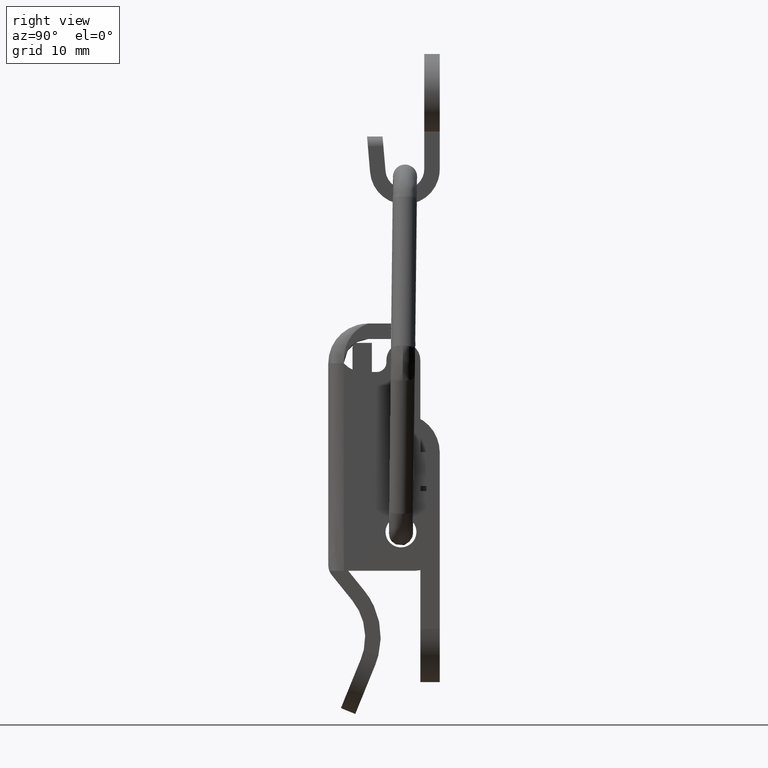
[diagram: clean part render]
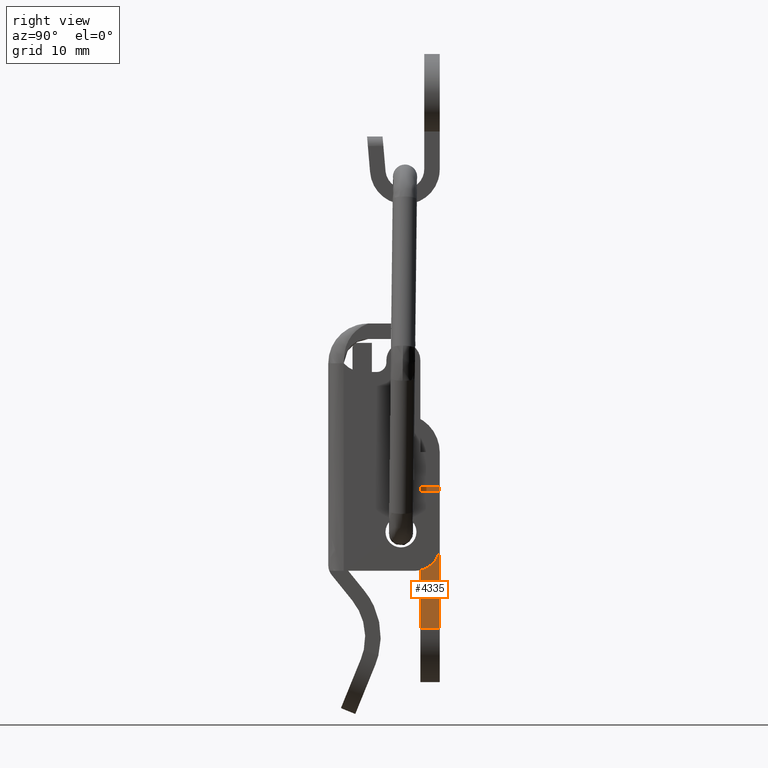
[diagram: same view with one face highlighted and labeled with its STEP entity id]
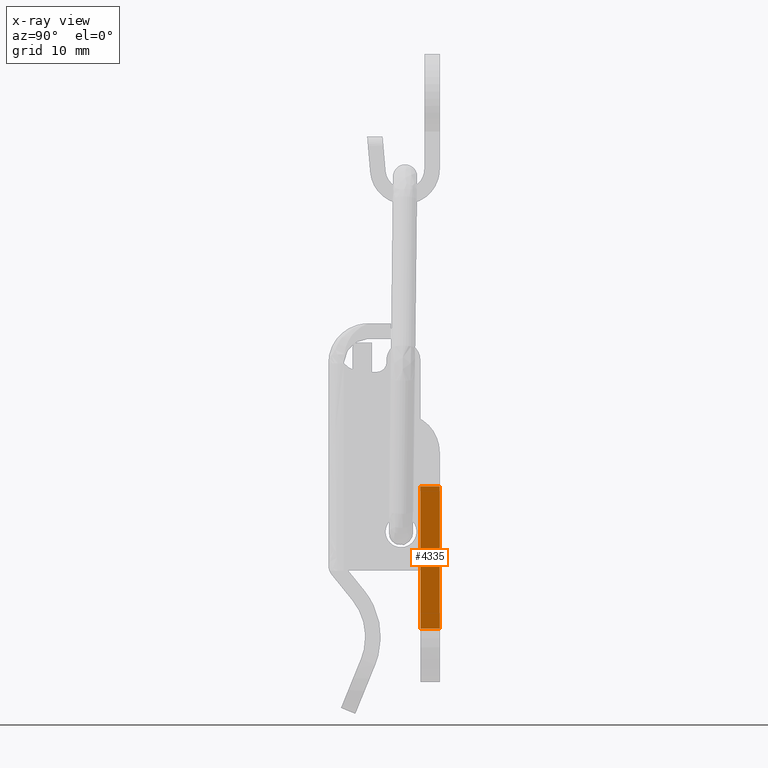
[diagram: x-ray of the same camera — body ghosted, the highlighted face saturated]
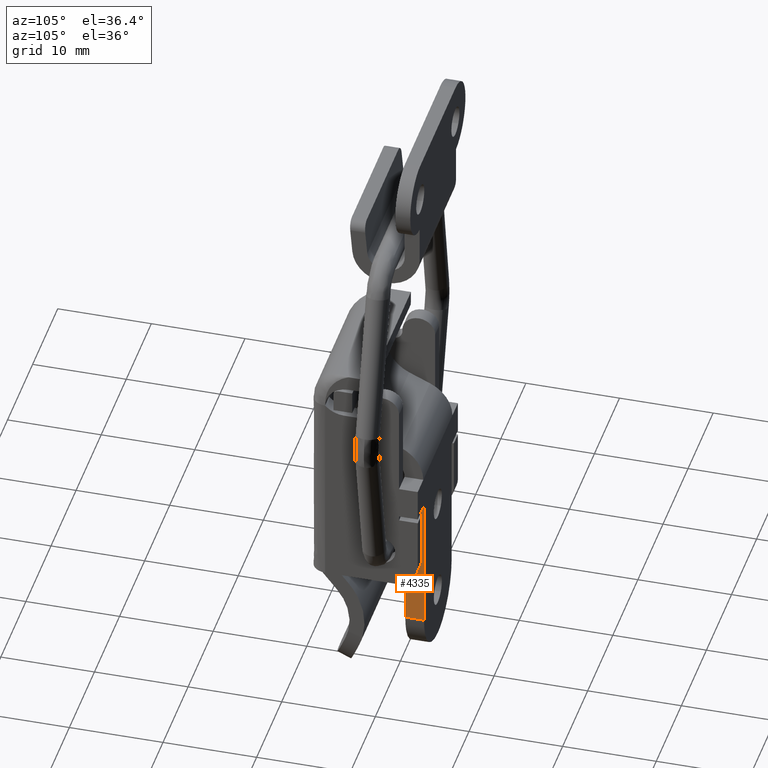
[diagram: same view with one face highlighted and labeled with its STEP entity id]
A machine part, right view. The second image highlights one B-rep face of the part: STEP entity #4335.
The next image is the same camera in x-ray: the body ghosted, the highlighted face saturated — about 0% of this face is hidden behind the body in this view.
A second angle (auxiliary view) of the same face is appended — the face is thin or edge-on in the first view.
In plain terms, the highlighted face is a freeform B-spline surface patch.
Its self-contained STEP definition (entity closure, byte-faithful):
#4259=CARTESIAN_POINT('',(5.499999999982849,4.000000000001780,-9.997400000008570));
#4260=VERTEX_POINT('',#4259);
#4276=CARTESIAN_POINT('',(5.499999999982849,1.999999999997450,-9.997400000008570));
#4277=VERTEX_POINT('',#4276);
#4278=CARTESIAN_POINT('',(5.499999999982849,1.999999999997450,-9.997400000008570));
#4279=CARTESIAN_POINT('',(5.499999999982849,4.000000000001780,-9.997400000008570));
#4280=QUASI_UNIFORM_CURVE('',1,(#4278,#4279),.UNSPECIFIED.,.F.,.U.);
#4281=EDGE_CURVE('',#4277,#4260,#4280,.T.);
#4308=CARTESIAN_POINT('',(5.500000000007113,1.900100003871055,5.436864971499988));
#4309=CARTESIAN_POINT('',(5.499999999981697,1.900100003871055,-10.731665365801851));
#4310=CARTESIAN_POINT('',(5.500000000007113,4.099900049769911,5.436864971499988));
#4311=CARTESIAN_POINT('',(5.499999999981697,4.099900049769911,-10.731665365801851));
#4312=B_SPLINE_SURFACE_WITH_KNOTS('',1,1,((#4308,#4310),(#4309,#4311)),.UNSPECIFIED.,.F.,.F.,.U.,(2,2),(2,2),(0.0,16.168530337301831),(0.0,2.199800045898856),.UNSPECIFIED.);
#4313=CARTESIAN_POINT('',(5.500000000005960,1.999999999995005,4.702599999991440));
#4314=VERTEX_POINT('',#4313);
#4315=CARTESIAN_POINT('',(5.500000000005960,1.999999999995005,4.702599999991440));
#4316=CARTESIAN_POINT('',(5.499999999982849,1.999999999997450,-9.997400000008570));
#4317=QUASI_UNIFORM_CURVE('',1,(#4315,#4316),.UNSPECIFIED.,.F.,.U.);
#4318=EDGE_CURVE('',#4314,#4277,#4317,.T.);
#4319=ORIENTED_EDGE('',*,*,#4318,.T.);
#4320=ORIENTED_EDGE('',*,*,#4281,.T.);
#4321=CARTESIAN_POINT('',(5.500000000005960,4.000000000001780,4.702599999991440));
#4322=VERTEX_POINT('',#4321);
#4323=CARTESIAN_POINT('',(5.500000000005960,4.000000000001780,4.702599999991440));
#4324=CARTESIAN_POINT('',(5.499999999982849,4.000000000001780,-9.997400000008570));
#4325=QUASI_UNIFORM_CURVE('',1,(#4323,#4324),.UNSPECIFIED.,.F.,.U.);
#4326=EDGE_CURVE('',#4322,#4260,#4325,.T.);
#4327=ORIENTED_EDGE('',*,*,#4326,.F.);
#4328=CARTESIAN_POINT('',(5.500000000005960,1.999999999995005,4.702599999991440));
#4329=CARTESIAN_POINT('',(5.500000000005960,4.000000000001780,4.702599999991440));
#4330=QUASI_UNIFORM_CURVE('',1,(#4328,#4329),.UNSPECIFIED.,.F.,.U.);
#4331=EDGE_CURVE('',#4314,#4322,#4330,.T.);
#4332=ORIENTED_EDGE('',*,*,#4331,.F.);
#4333=EDGE_LOOP('',(#4319,#4320,#4327,#4332));
#4334=FACE_OUTER_BOUND('',#4333,.T.);
#4335=ADVANCED_FACE('',(#4334),#4312,.T.);